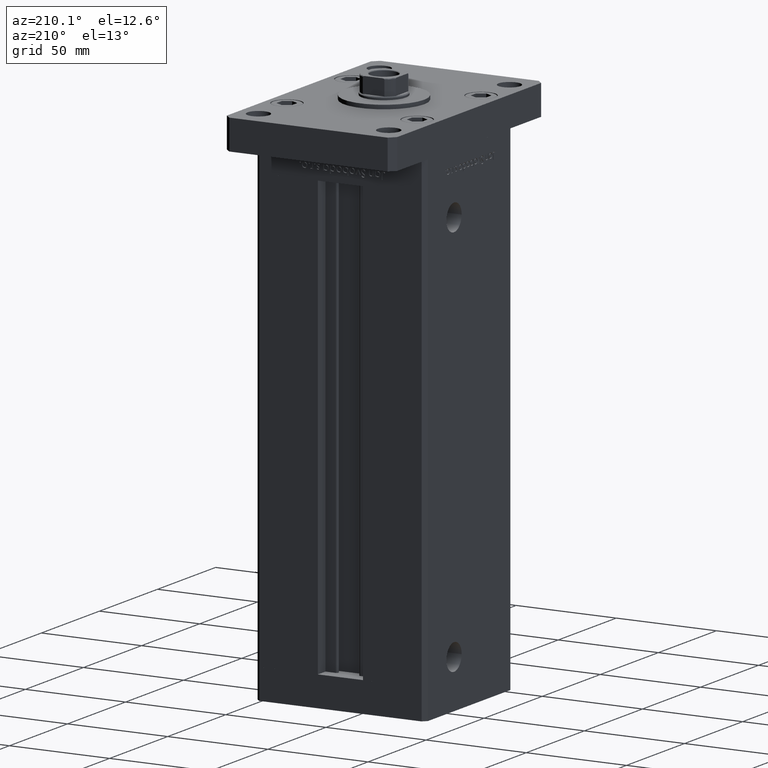
[diagram: clean part render]
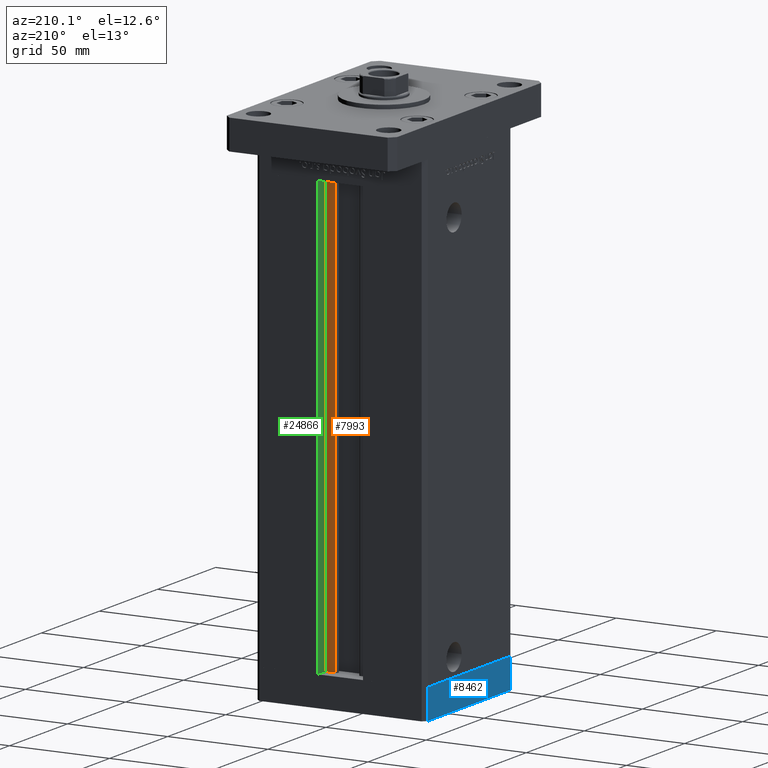
[diagram: same view with three faces highlighted in distinct colors, each labeled with its STEP entity id]
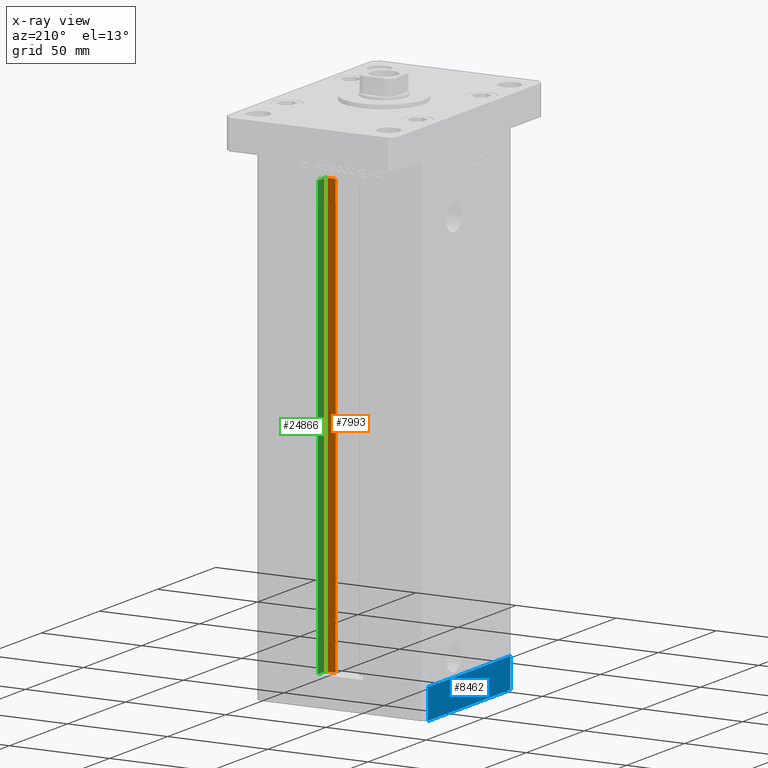
[diagram: x-ray of the same camera — body ghosted, the three highlighted faces saturated]
A machine part, auxiliary view with three faces highlighted in distinct colors.
The next image is the same camera in x-ray (body ghosted, the three faces saturated) — at least one of them is partly hidden behind the body in this view.
Their STEP definitions:

[orange] entity #7993 — the highlighted planar face has unit normal (0, -1, 0).
#1517 = CARTESIAN_POINT ( 'NONE',  ( 11.25000000000000000, 30.99999999999999289, 0.000000000000000000 ) ) ;
#2591 = ORIENTED_EDGE ( 'NONE', *, *, #49733, .F. ) ;
#4052 = EDGE_LOOP ( 'NONE', ( #51077, #2591, #9100, #22386 ) ) ;
#4190 = VECTOR ( 'NONE', #18063, 1000.000000000000000 ) ;
#4583 = CARTESIAN_POINT ( 'NONE',  ( 6.183333333333999704, 30.99999999999999289, 0.000000000000000000 ) ) ;
#7993 = ADVANCED_FACE ( 'NONE', ( #9169 ), #17325, .F. ) ;
#9100 = ORIENTED_EDGE ( 'NONE', *, *, #36989, .T. ) ;
#9169 = FACE_OUTER_BOUND ( 'NONE', #4052, .T. ) ;
#9371 = EDGE_CURVE ( 'NONE', #14764, #31417, #38668, .T. ) ;
#12440 = LINE ( 'NONE', #12710, #42003 ) ;
#12710 = CARTESIAN_POINT ( 'NONE',  ( 6.183333333333999704, 30.99999999999999289, 0.000000000000000000 ) ) ;
#12774 = VECTOR ( 'NONE', #41575, 1000.000000000000000 ) ;
#14764 = VERTEX_POINT ( 'NONE', #37121 ) ;
#15274 = VERTEX_POINT ( 'NONE', #36574 ) ;
#17325 = PLANE ( 'NONE',  #44724 ) ;
#18063 = DIRECTION ( 'NONE',  ( -0.000000000000000000, -0.000000000000000000, 1.000000000000000000 ) ) ;
#20563 = VECTOR ( 'NONE', #49257, 1000.000000000000000 ) ;
#21112 = DIRECTION ( 'NONE',  ( 0.000000000000000000, -0.000000000000000000, -1.000000000000000000 ) ) ;
#21383 = DIRECTION ( 'NONE',  ( 0.000000000000000000, -1.000000000000000000, 0.000000000000000000 ) ) ;
#22386 = ORIENTED_EDGE ( 'NONE', *, *, #44599, .F. ) ;
#27368 = CARTESIAN_POINT ( 'NONE',  ( 11.25000000000000000, 30.99999999999999289, 218.5000000000000000 ) ) ;
#28550 = LINE ( 'NONE', #49142, #12774 ) ;
#31417 = VERTEX_POINT ( 'NONE', #27368 ) ;
#35725 = LINE ( 'NONE', #53320, #20563 ) ;
#36574 = CARTESIAN_POINT ( 'NONE',  ( 6.183333333333999704, 30.99999999999999289, 218.5000000000000000 ) ) ;
#36989 = EDGE_CURVE ( 'NONE', #45715, #15274, #12440, .T. ) ;
#37121 = CARTESIAN_POINT ( 'NONE',  ( 11.25000000000000000, 30.99999999999999289, 0.000000000000000000 ) ) ;
#38668 = LINE ( 'NONE', #1517, #4190 ) ;
#41575 = DIRECTION ( 'NONE',  ( 1.000000000000000000, 0.000000000000000000, 0.000000000000000000 ) ) ;
#42003 = VECTOR ( 'NONE', #45261, 1000.000000000000000 ) ;
#44599 = EDGE_CURVE ( 'NONE', #31417, #15274, #35725, .T. ) ;
#44724 = AXIS2_PLACEMENT_3D ( 'NONE', #4583, #21383, #21112 ) ;
#45261 = DIRECTION ( 'NONE',  ( -0.000000000000000000, -0.000000000000000000, 1.000000000000000000 ) ) ;
#45715 = VERTEX_POINT ( 'NONE', #50965 ) ;
#49142 = CARTESIAN_POINT ( 'NONE',  ( 6.183333333333999704, 30.99999999999999289, 0.000000000000000000 ) ) ;
#49257 = DIRECTION ( 'NONE',  ( -1.000000000000000000, 0.000000000000000000, 0.000000000000000000 ) ) ;
#49733 = EDGE_CURVE ( 'NONE', #45715, #14764, #28550, .T. ) ;
#50965 = CARTESIAN_POINT ( 'NONE',  ( 6.183333333333999704, 30.99999999999999289, 0.000000000000000000 ) ) ;
#51077 = ORIENTED_EDGE ( 'NONE', *, *, #9371, .F. ) ;
#53320 = CARTESIAN_POINT ( 'NONE',  ( 0.000000000000000000, 30.99999999999999289, 218.5000000000000000 ) ) ;

[blue] entity #8462 — the highlighted planar face has unit normal (-1, 0, 0).
#160 = VERTEX_POINT ( 'NONE', #32794 ) ;
#1948 = CARTESIAN_POINT ( 'NONE',  ( 42.50000000000000711, -35.50000000000000000, -15.00000000000000000 ) ) ;
#2168 = VERTEX_POINT ( 'NONE', #17037 ) ;
#3683 = DIRECTION ( 'NONE',  ( -1.172770800660376741E-15, 1.000000000000000000, 0.000000000000000000 ) ) ;
#5347 = EDGE_CURVE ( 'NONE', #160, #29384, #33557, .T. ) ;
#6381 = DIRECTION ( 'NONE',  ( 1.000000000000000000, 1.172770800660376741E-15, -0.000000000000000000 ) ) ;
#6493 = EDGE_CURVE ( 'NONE', #29384, #8744, #20230, .T. ) ;
#8462 = ADVANCED_FACE ( 'NONE', ( #31314 ), #27245, .T. ) ;
#8744 = VERTEX_POINT ( 'NONE', #9577 ) ;
#9577 = CARTESIAN_POINT ( 'NONE',  ( 42.49999999999992895, 35.50000000000000000, 0.000000000000000000 ) ) ;
#11327 = CARTESIAN_POINT ( 'NONE',  ( 42.50000000000000711, -35.50000000000000000, 0.000000000000000000 ) ) ;
#11920 = EDGE_CURVE ( 'NONE', #2168, #8744, #48581, .T. ) ;
#12073 = VECTOR ( 'NONE', #44271, 1000.000000000000000 ) ;
#17037 = CARTESIAN_POINT ( 'NONE',  ( 42.49999999999992895, 35.50000000000000000, -15.00000000000000000 ) ) ;
#20208 = EDGE_CURVE ( 'NONE', #160, #2168, #27419, .T. ) ;
#20230 = LINE ( 'NONE', #53282, #26487 ) ;
#23042 = ORIENTED_EDGE ( 'NONE', *, *, #6493, .F. ) ;
#23087 = AXIS2_PLACEMENT_3D ( 'NONE', #23441, #6381, #43792 ) ;
#23441 = CARTESIAN_POINT ( 'NONE',  ( 42.50000000000000711, -35.50000000000000000, -15.00000000000000000 ) ) ;
#26487 = VECTOR ( 'NONE', #3683, 1000.000000000000000 ) ;
#27245 = PLANE ( 'NONE',  #23087 ) ;
#27419 = LINE ( 'NONE', #1948, #50277 ) ;
#27728 = CARTESIAN_POINT ( 'NONE',  ( 42.49999999999992895, 35.50000000000000000, -15.00000000000000000 ) ) ;
#29229 = DIRECTION ( 'NONE',  ( 0.000000000000000000, 0.000000000000000000, 1.000000000000000000 ) ) ;
#29384 = VERTEX_POINT ( 'NONE', #11327 ) ;
#31161 = ORIENTED_EDGE ( 'NONE', *, *, #5347, .F. ) ;
#31240 = ORIENTED_EDGE ( 'NONE', *, *, #20208, .T. ) ;
#31314 = FACE_OUTER_BOUND ( 'NONE', #40096, .T. ) ;
#32794 = CARTESIAN_POINT ( 'NONE',  ( 42.50000000000000711, -35.50000000000000000, -15.00000000000000000 ) ) ;
#33557 = LINE ( 'NONE', #53604, #40428 ) ;
#40096 = EDGE_LOOP ( 'NONE', ( #23042, #31161, #31240, #53085 ) ) ;
#40428 = VECTOR ( 'NONE', #29229, 1000.000000000000000 ) ;
#43792 = DIRECTION ( 'NONE',  ( -1.172770800660376741E-15, 1.000000000000000000, 0.000000000000000000 ) ) ;
#44271 = DIRECTION ( 'NONE',  ( 0.000000000000000000, 0.000000000000000000, 1.000000000000000000 ) ) ;
#48581 = LINE ( 'NONE', #27728, #12073 ) ;
#50277 = VECTOR ( 'NONE', #52089, 1000.000000000000000 ) ;
#52089 = DIRECTION ( 'NONE',  ( -1.172770800660376741E-15, 1.000000000000000000, 0.000000000000000000 ) ) ;
#53085 = ORIENTED_EDGE ( 'NONE', *, *, #11920, .T. ) ;
#53282 = CARTESIAN_POINT ( 'NONE',  ( 42.50000000000000711, -35.50000000000000000, 0.000000000000000000 ) ) ;
#53604 = CARTESIAN_POINT ( 'NONE',  ( 42.50000000000000711, -35.50000000000000000, -15.00000000000000000 ) ) ;

[green] entity #24866 — the highlighted planar face has unit normal (1, 0, 0).
#1517 = CARTESIAN_POINT ( 'NONE',  ( 11.25000000000000000, 30.99999999999999289, 0.000000000000000000 ) ) ;
#2824 = DIRECTION ( 'NONE',  ( -0.000000000000000000, -0.000000000000000000, 1.000000000000000000 ) ) ;
#4190 = VECTOR ( 'NONE', #18063, 1000.000000000000000 ) ;
#7450 = ORIENTED_EDGE ( 'NONE', *, *, #9371, .T. ) ;
#8731 = CARTESIAN_POINT ( 'NONE',  ( 11.25000000000000000, 0.000000000000000000, 218.5000000000000000 ) ) ;
#9371 = EDGE_CURVE ( 'NONE', #14764, #31417, #38668, .T. ) ;
#11208 = ORIENTED_EDGE ( 'NONE', *, *, #21647, .F. ) ;
#14764 = VERTEX_POINT ( 'NONE', #37121 ) ;
#15076 = DIRECTION ( 'NONE',  ( 0.000000000000000000, 0.000000000000000000, -1.000000000000000000 ) ) ;
#17092 = DIRECTION ( 'NONE',  ( 1.000000000000000000, -0.000000000000000000, 0.000000000000000000 ) ) ;
#18063 = DIRECTION ( 'NONE',  ( -0.000000000000000000, -0.000000000000000000, 1.000000000000000000 ) ) ;
#18320 = CARTESIAN_POINT ( 'NONE',  ( 11.24999999999999289, 37.50000000000000000, 218.5000000000000000 ) ) ;
#21144 = PLANE ( 'NONE',  #49569 ) ;
#21647 = EDGE_CURVE ( 'NONE', #14764, #52071, #22347, .T. ) ;
#22347 = LINE ( 'NONE', #34258, #41675 ) ;
#22605 = DIRECTION ( 'NONE',  ( 0.000000000000000000, 1.000000000000000000, 0.000000000000000000 ) ) ;
#22947 = CARTESIAN_POINT ( 'NONE',  ( 11.25000000000000000, 30.99999999999999289, 0.000000000000000000 ) ) ;
#24866 = ADVANCED_FACE ( 'NONE', ( #31074 ), #21144, .F. ) ;
#26584 = VECTOR ( 'NONE', #37199, 1000.000000000000000 ) ;
#27368 = CARTESIAN_POINT ( 'NONE',  ( 11.25000000000000000, 30.99999999999999289, 218.5000000000000000 ) ) ;
#28594 = CARTESIAN_POINT ( 'NONE',  ( 11.25000000000000000, 37.50000000000000000, 0.000000000000000000 ) ) ;
#28603 = VERTEX_POINT ( 'NONE', #18320 ) ;
#30918 = EDGE_CURVE ( 'NONE', #52071, #28603, #39440, .T. ) ;
#31074 = FACE_OUTER_BOUND ( 'NONE', #35488, .T. ) ;
#31300 = CARTESIAN_POINT ( 'NONE',  ( 11.25000000000000000, 37.50000000000000000, 0.000000000000000000 ) ) ;
#31417 = VERTEX_POINT ( 'NONE', #27368 ) ;
#34258 = CARTESIAN_POINT ( 'NONE',  ( 11.25000000000000000, 30.99999999999999289, 0.000000000000000000 ) ) ;
#35488 = EDGE_LOOP ( 'NONE', ( #49513, #11208, #7450, #52791 ) ) ;
#37121 = CARTESIAN_POINT ( 'NONE',  ( 11.25000000000000000, 30.99999999999999289, 0.000000000000000000 ) ) ;
#37199 = DIRECTION ( 'NONE',  ( -0.000000000000000000, -1.000000000000000000, 0.000000000000000000 ) ) ;
#38276 = LINE ( 'NONE', #8731, #26584 ) ;
#38668 = LINE ( 'NONE', #1517, #4190 ) ;
#39440 = LINE ( 'NONE', #31300, #47977 ) ;
#41675 = VECTOR ( 'NONE', #22605, 1000.000000000000000 ) ;
#43303 = EDGE_CURVE ( 'NONE', #28603, #31417, #38276, .T. ) ;
#47977 = VECTOR ( 'NONE', #2824, 1000.000000000000000 ) ;
#49513 = ORIENTED_EDGE ( 'NONE', *, *, #30918, .F. ) ;
#49569 = AXIS2_PLACEMENT_3D ( 'NONE', #22947, #17092, #15076 ) ;
#52071 = VERTEX_POINT ( 'NONE', #28594 ) ;
#52791 = ORIENTED_EDGE ( 'NONE', *, *, #43303, .F. ) ;